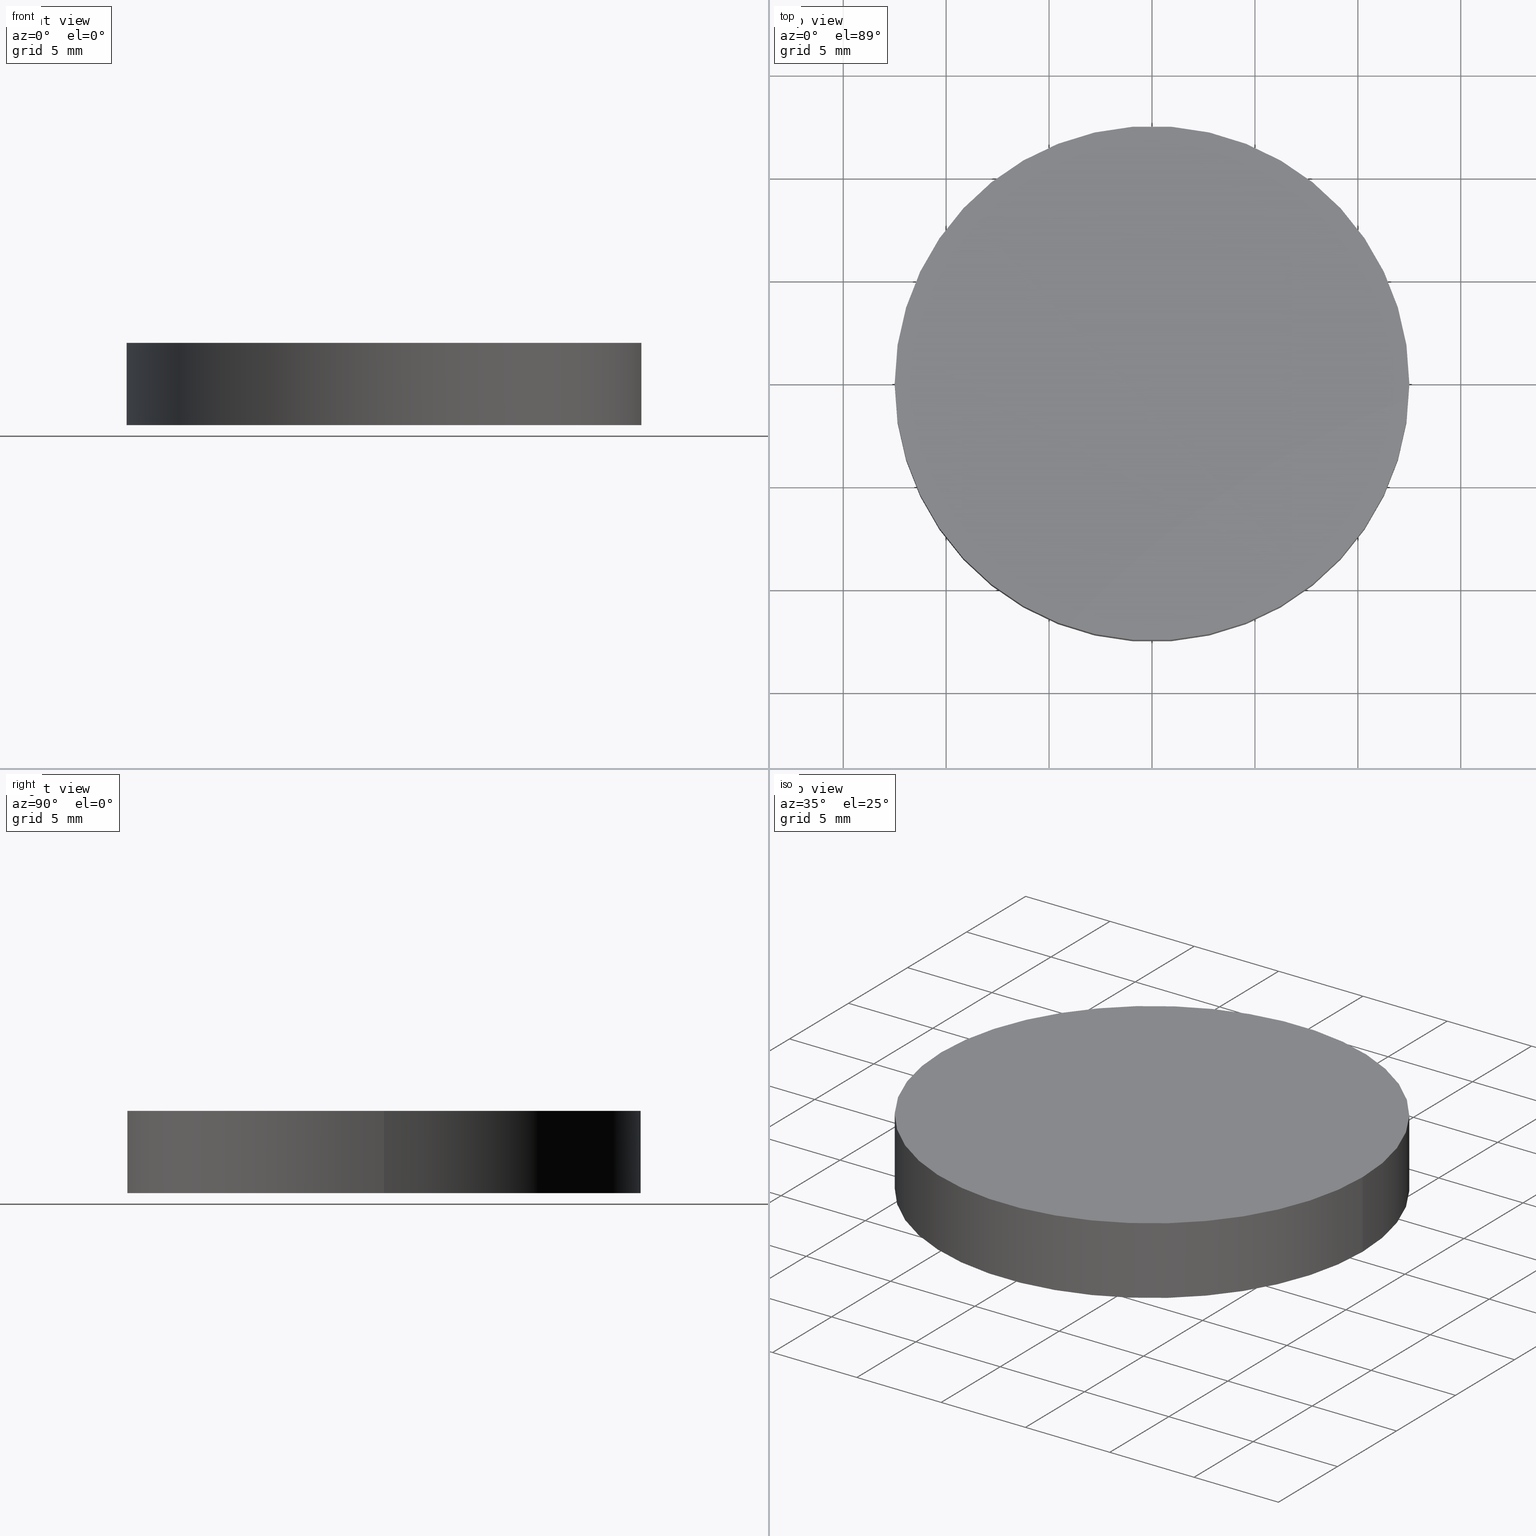
[diagram: canonical four-view strip — front | top / right | iso, engineering-drawing reading convention]
A machine part, canonical four-view strip (front | top / right | iso — engineering-drawing reading convention). The complete STEP part file that produces these views, byte-faithful:
ISO-10303-21;
HEADER;
FILE_DESCRIPTION (( 'STEP AP214' ),
    '1' );
FILE_NAME ('180005.STEP',
    '2019-07-09T05:32:59',
    ( 'user' ),
    ( '΢���й�' ),
    'SwSTEP 2.0',
    'SolidWorks 2016',
    '' );
FILE_SCHEMA (( 'AUTOMOTIVE_DESIGN' ));
ENDSEC;

DATA;
#1 =( NAMED_UNIT ( * ) PLANE_ANGLE_UNIT ( ) SI_UNIT ( $, .RADIAN. ) );
#2 = CARTESIAN_POINT ( 'NONE',  ( 0.0000000000000000000, 0.0000000000000000000, 4.000000000000000000 ) ) ;
#3 = CARTESIAN_POINT ( 'NONE',  ( 0.0000000000000000000, 0.0000000000000000000, 4.000000000000000000 ) ) ;
#4 = CARTESIAN_POINT ( 'NONE',  ( -12.50000000000000000, 0.0000000000000000000, 4.000000000000000000 ) ) ;
#5 = ORIENTED_EDGE ( 'NONE', *, *, #18, .F. ) ;
#6 =( NAMED_UNIT ( * ) PLANE_ANGLE_UNIT ( ) SI_UNIT ( $, .RADIAN. ) );
#7 = UNCERTAINTY_MEASURE_WITH_UNIT (LENGTH_MEASURE( 1.000000000000000100E-005 ), #54, 'distance_accuracy_value', 'NONE');
#8 = EDGE_CURVE ( 'NONE', #90, #122, #116, .T. ) ;
#9 = CLOSED_SHELL ( 'NONE', ( #101, #96, #27, #105 ) ) ;
#10 = PRODUCT_RELATED_PRODUCT_CATEGORY ( 'part', '', ( #62 ) ) ;
#11 = CARTESIAN_POINT ( 'NONE',  ( 12.50000000000000000, 1.530808498934191500E-015, 4.000000000000000000 ) ) ;
#12 = ORIENTED_EDGE ( 'NONE', *, *, #18, .T. ) ;
#13 = DIRECTION ( 'NONE',  ( 1.000000000000000000, 0.0000000000000000000, 0.0000000000000000000 ) ) ;
#14 = CARTESIAN_POINT ( 'NONE',  ( -12.50000000000000000, 0.0000000000000000000, 4.000000000000000000 ) ) ;
#15 = VECTOR ( 'NONE', #111, 1000.000000000000000 ) ;
#16 = AXIS2_PLACEMENT_3D ( 'NONE', #84, #78, #95 ) ;
#17 = EDGE_LOOP ( 'NONE', ( #33, #61 ) ) ;
#18 = EDGE_CURVE ( 'NONE', #90, #91, #40, .T. ) ;
#19 = FILL_AREA_STYLE_COLOUR ( '', #112 ) ;
#20 = AXIS2_PLACEMENT_3D ( 'NONE', #3, #113, #50 ) ;
#21 = CIRCLE ( 'NONE', #20, 12.50000000000000000 ) ;
#22 = AXIS2_PLACEMENT_3D ( 'NONE', #2, #103, #58 ) ;
#23 = ORIENTED_EDGE ( 'NONE', *, *, #8, .T. ) ;
#24 = PRODUCT_DEFINITION ( 'δ֪', '', #135, #44 ) ;
#25 = CARTESIAN_POINT ( 'NONE',  ( 0.0000000000000000000, 0.0000000000000000000, 0.0000000000000000000 ) ) ;
#26 = PRESENTATION_STYLE_ASSIGNMENT (( #29 ) ) ;
#27 = ADVANCED_FACE ( 'NONE', ( #138 ), #133, .T. ) ;
#28 = EDGE_LOOP ( 'NONE', ( #75, #23 ) ) ;
#29 = SURFACE_STYLE_USAGE ( .BOTH. , #110 ) ;
#30 = STYLED_ITEM ( 'NONE', ( #83 ), #63 ) ;
#31 = FILL_AREA_STYLE ('',( #125 ) ) ;
#32 =( NAMED_UNIT ( * ) SI_UNIT ( $, .STERADIAN. ) SOLID_ANGLE_UNIT ( ) );
#33 = ORIENTED_EDGE ( 'NONE', *, *, #102, .F. ) ;
#34 = DIRECTION ( 'NONE',  ( -0.0000000000000000000, -0.0000000000000000000, -1.000000000000000000 ) ) ;
#35 = CARTESIAN_POINT ( 'NONE',  ( 0.0000000000000000000, 0.0000000000000000000, 4.000000000000000000 ) ) ;
#36 = APPLICATION_CONTEXT ( 'automotive_design' ) ;
#37 = DIRECTION ( 'NONE',  ( -0.0000000000000000000, -0.0000000000000000000, -1.000000000000000000 ) ) ;
#38 = ORIENTED_EDGE ( 'NONE', *, *, #102, .T. ) ;
#39 = CYLINDRICAL_SURFACE ( 'NONE', #81, 12.50000000000000000 ) ;
#40 = LINE ( 'NONE', #109, #57 ) ;
#41 = DIRECTION ( 'NONE',  ( 1.000000000000000000, 0.0000000000000000000, 0.0000000000000000000 ) ) ;
#42 = LINE ( 'NONE', #4, #15 ) ;
#43 = DIRECTION ( 'NONE',  ( 0.0000000000000000000, 0.0000000000000000000, 1.000000000000000000 ) ) ;
#44 = PRODUCT_DEFINITION_CONTEXT ( 'detailed design', #36, 'design' ) ;
#45 = SURFACE_SIDE_STYLE ('',( #136 ) ) ;
#46 = DIRECTION ( 'NONE',  ( 0.0000000000000000000, 0.0000000000000000000, 1.000000000000000000 ) ) ;
#47 = CIRCLE ( 'NONE', #82, 12.50000000000000000 ) ;
#48 = CARTESIAN_POINT ( 'NONE',  ( 0.0000000000000000000, 0.0000000000000000000, 4.000000000000000000 ) ) ;
#49 = CARTESIAN_POINT ( 'NONE',  ( -12.50000000000000000, 0.0000000000000000000, 0.0000000000000000000 ) ) ;
#50 = DIRECTION ( 'NONE',  ( 1.000000000000000000, 0.0000000000000000000, 0.0000000000000000000 ) ) ;
#51 = PRODUCT_DEFINITION_SHAPE ( 'NONE', 'NONE',  #24 ) ;
#52 =( LENGTH_UNIT ( ) NAMED_UNIT ( * ) SI_UNIT ( .MILLI., .METRE. ) );
#53 = CARTESIAN_POINT ( 'NONE',  ( 0.0000000000000000000, 0.0000000000000000000, 0.0000000000000000000 ) ) ;
#54 =( LENGTH_UNIT ( ) NAMED_UNIT ( * ) SI_UNIT ( .MILLI., .METRE. ) );
#55 = SURFACE_STYLE_USAGE ( .BOTH. , #45 ) ;
#56 =( NAMED_UNIT ( * ) SI_UNIT ( $, .STERADIAN. ) SOLID_ANGLE_UNIT ( ) );
#57 = VECTOR ( 'NONE', #34, 1000.000000000000000 ) ;
#58 = DIRECTION ( 'NONE',  ( 1.000000000000000000, 0.0000000000000000000, -0.0000000000000000000 ) ) ;
#59 = SURFACE_STYLE_FILL_AREA ( #31 ) ;
#60 = EDGE_LOOP ( 'NONE', ( #5, #100, #72, #38 ) ) ;
#61 = ORIENTED_EDGE ( 'NONE', *, *, #66, .F. ) ;
#62 = PRODUCT ( '180005', '180005', '', ( #70 ) ) ;
#63 = MANIFOLD_SOLID_BREP ( '͹̨-����1', #9 ) ;
#64 = EDGE_CURVE ( 'NONE', #122, #90, #21, .T. ) ;
#65 =( LENGTH_UNIT ( ) NAMED_UNIT ( * ) SI_UNIT ( .MILLI., .METRE. ) );
#66 = EDGE_CURVE ( 'NONE', #91, #126, #47, .T. ) ;
#67 = AXIS2_PLACEMENT_3D ( 'NONE', #35, #123, #140 ) ;
#68 = CIRCLE ( 'NONE', #76, 12.50000000000000000 ) ;
#69 = APPLICATION_PROTOCOL_DEFINITION ( 'draft international standard', 'automotive_design', 1998, #121 ) ;
#70 = PRODUCT_CONTEXT ( 'NONE', #121, 'mechanical' ) ;
#71 = AXIS2_PLACEMENT_3D ( 'NONE', #48, #139, #13 ) ;
#72 = ORIENTED_EDGE ( 'NONE', *, *, #92, .T. ) ;
#73 = CARTESIAN_POINT ( 'NONE',  ( 12.50000000000000000, 1.530808498934191500E-015, 0.0000000000000000000 ) ) ;
#74 = FACE_OUTER_BOUND ( 'NONE', #97, .T. ) ;
#75 = ORIENTED_EDGE ( 'NONE', *, *, #64, .T. ) ;
#76 = AXIS2_PLACEMENT_3D ( 'NONE', #53, #46, #41 ) ;
#77 = FACE_OUTER_BOUND ( 'NONE', #60, .T. ) ;
#78 = DIRECTION ( 'NONE',  ( 0.0000000000000000000, 0.0000000000000000000, 1.000000000000000000 ) ) ;
#79 = APPLICATION_PROTOCOL_DEFINITION ( 'draft international standard', 'automotive_design', 1998, #36 ) ;
#80 =( NAMED_UNIT ( * ) SI_UNIT ( $, .STERADIAN. ) SOLID_ANGLE_UNIT ( ) );
#81 = AXIS2_PLACEMENT_3D ( 'NONE', #137, #37, #120 ) ;
#82 = AXIS2_PLACEMENT_3D ( 'NONE', #25, #131, #87 ) ;
#83 = PRESENTATION_STYLE_ASSIGNMENT (( #55 ) ) ;
#84 = CARTESIAN_POINT ( 'NONE',  ( 0.0000000000000000000, 0.0000000000000000000, 0.0000000000000000000 ) ) ;
#85 = COLOUR_RGB ( '',1.000000000000000000, 1.000000000000000000, 1.000000000000000000 ) ;
#86 = ORIENTED_EDGE ( 'NONE', *, *, #66, .T. ) ;
#87 = DIRECTION ( 'NONE',  ( 1.000000000000000000, 0.0000000000000000000, 0.0000000000000000000 ) ) ;
#88 =( GEOMETRIC_REPRESENTATION_CONTEXT ( 3 ) GLOBAL_UNCERTAINTY_ASSIGNED_CONTEXT ( ( #107 ) ) GLOBAL_UNIT_ASSIGNED_CONTEXT ( ( #52, #1, #56 ) ) REPRESENTATION_CONTEXT ( 'NONE', 'WORKASPACE' ) );
#89 = DIRECTION ( 'NONE',  ( 1.000000000000000000, 0.0000000000000000000, -0.0000000000000000000 ) ) ;
#90 = VERTEX_POINT ( 'NONE', #11 ) ;
#91 = VERTEX_POINT ( 'NONE', #73 ) ;
#92 = EDGE_CURVE ( 'NONE', #122, #126, #42, .T. ) ;
#93 = AXIS2_PLACEMENT_3D ( 'NONE', #108, #43, #89 ) ;
#94 = CYLINDRICAL_SURFACE ( 'NONE', #67, 12.50000000000000000 ) ;
#95 = DIRECTION ( 'NONE',  ( 1.000000000000000000, 0.0000000000000000000, 0.0000000000000000000 ) ) ;
#96 = ADVANCED_FACE ( 'NONE', ( #77 ), #94, .T. ) ;
#97 = EDGE_LOOP ( 'NONE', ( #132, #12, #86, #117 ) ) ;
#98 = FACE_OUTER_BOUND ( 'NONE', #17, .T. ) ;
#99 = PLANE ( 'NONE',  #93 ) ;
#100 = ORIENTED_EDGE ( 'NONE', *, *, #64, .F. ) ;
#101 = ADVANCED_FACE ( 'NONE', ( #74 ), #39, .T. ) ;
#102 = EDGE_CURVE ( 'NONE', #126, #91, #68, .T. ) ;
#103 = DIRECTION ( 'NONE',  ( 0.0000000000000000000, 0.0000000000000000000, 1.000000000000000000 ) ) ;
#104 = ADVANCED_BREP_SHAPE_REPRESENTATION ( '180005', ( #63, #16 ), #88 ) ;
#105 = ADVANCED_FACE ( 'NONE', ( #98 ), #99, .F. ) ;
#106 = PRESENTATION_LAYER_ASSIGNMENT (  '', '', ( #30 ) ) ;
#107 = UNCERTAINTY_MEASURE_WITH_UNIT (LENGTH_MEASURE( 1.000000000000000100E-005 ), #52, 'distance_accuracy_value', 'NONE');
#108 = CARTESIAN_POINT ( 'NONE',  ( 0.0000000000000000000, 0.0000000000000000000, 0.0000000000000000000 ) ) ;
#109 = CARTESIAN_POINT ( 'NONE',  ( 12.50000000000000000, 1.530808498934191500E-015, 4.000000000000000000 ) ) ;
#110 = SURFACE_SIDE_STYLE ('',( #59 ) ) ;
#111 = DIRECTION ( 'NONE',  ( -0.0000000000000000000, -0.0000000000000000000, -1.000000000000000000 ) ) ;
#112 = COLOUR_RGB ( '',1.000000000000000000, 1.000000000000000000, 1.000000000000000000 ) ;
#113 = DIRECTION ( 'NONE',  ( 0.0000000000000000000, 0.0000000000000000000, 1.000000000000000000 ) ) ;
#114 = STYLED_ITEM ( 'NONE', ( #26 ), #104 ) ;
#115 =( GEOMETRIC_REPRESENTATION_CONTEXT ( 3 ) GLOBAL_UNCERTAINTY_ASSIGNED_CONTEXT ( ( #129 ) ) GLOBAL_UNIT_ASSIGNED_CONTEXT ( ( #65, #6, #32 ) ) REPRESENTATION_CONTEXT ( 'NONE', 'WORKASPACE' ) );
#116 = CIRCLE ( 'NONE', #71, 12.50000000000000000 ) ;
#117 = ORIENTED_EDGE ( 'NONE', *, *, #92, .F. ) ;
#118 = PRESENTATION_LAYER_ASSIGNMENT (  '', '', ( #114 ) ) ;
#119 = MECHANICAL_DESIGN_GEOMETRIC_PRESENTATION_REPRESENTATION (  '', ( #30 ), #115 ) ;
#120 = DIRECTION ( 'NONE',  ( -1.000000000000000000, 0.0000000000000000000, 0.0000000000000000000 ) ) ;
#121 = APPLICATION_CONTEXT ( 'automotive_design' ) ;
#122 = VERTEX_POINT ( 'NONE', #14 ) ;
#123 = DIRECTION ( 'NONE',  ( -0.0000000000000000000, -0.0000000000000000000, -1.000000000000000000 ) ) ;
#124 = FILL_AREA_STYLE ('',( #19 ) ) ;
#125 = FILL_AREA_STYLE_COLOUR ( '', #85 ) ;
#126 = VERTEX_POINT ( 'NONE', #49 ) ;
#127 = MECHANICAL_DESIGN_GEOMETRIC_PRESENTATION_REPRESENTATION (  '', ( #114 ), #134 ) ;
#128 = SHAPE_DEFINITION_REPRESENTATION ( #51, #104 ) ;
#129 = UNCERTAINTY_MEASURE_WITH_UNIT (LENGTH_MEASURE( 1.000000000000000100E-005 ), #65, 'distance_accuracy_value', 'NONE');
#130 =( NAMED_UNIT ( * ) PLANE_ANGLE_UNIT ( ) SI_UNIT ( $, .RADIAN. ) );
#131 = DIRECTION ( 'NONE',  ( 0.0000000000000000000, 0.0000000000000000000, 1.000000000000000000 ) ) ;
#132 = ORIENTED_EDGE ( 'NONE', *, *, #8, .F. ) ;
#133 = PLANE ( 'NONE',  #22 ) ;
#134 =( GEOMETRIC_REPRESENTATION_CONTEXT ( 3 ) GLOBAL_UNCERTAINTY_ASSIGNED_CONTEXT ( ( #7 ) ) GLOBAL_UNIT_ASSIGNED_CONTEXT ( ( #54, #130, #80 ) ) REPRESENTATION_CONTEXT ( 'NONE', 'WORKASPACE' ) );
#135 = PRODUCT_DEFINITION_FORMATION_WITH_SPECIFIED_SOURCE ( '�κ�', '', #62, .NOT_KNOWN. ) ;
#136 = SURFACE_STYLE_FILL_AREA ( #124 ) ;
#137 = CARTESIAN_POINT ( 'NONE',  ( 0.0000000000000000000, 0.0000000000000000000, 4.000000000000000000 ) ) ;
#138 = FACE_OUTER_BOUND ( 'NONE', #28, .T. ) ;
#139 = DIRECTION ( 'NONE',  ( 0.0000000000000000000, 0.0000000000000000000, 1.000000000000000000 ) ) ;
#140 = DIRECTION ( 'NONE',  ( -1.000000000000000000, 0.0000000000000000000, 0.0000000000000000000 ) ) ;
ENDSEC;
END-ISO-10303-21;
